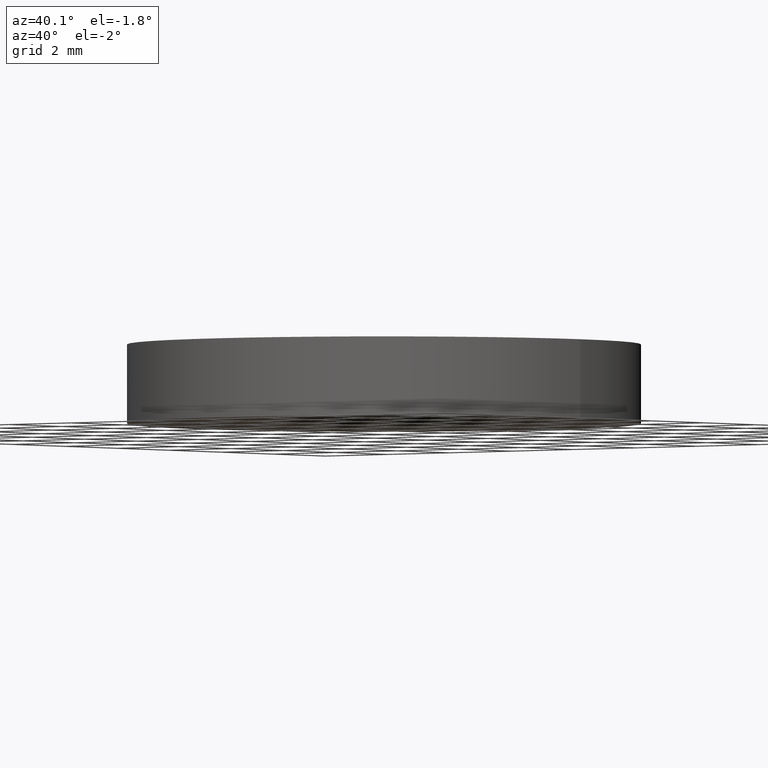
[diagram: clean part render]
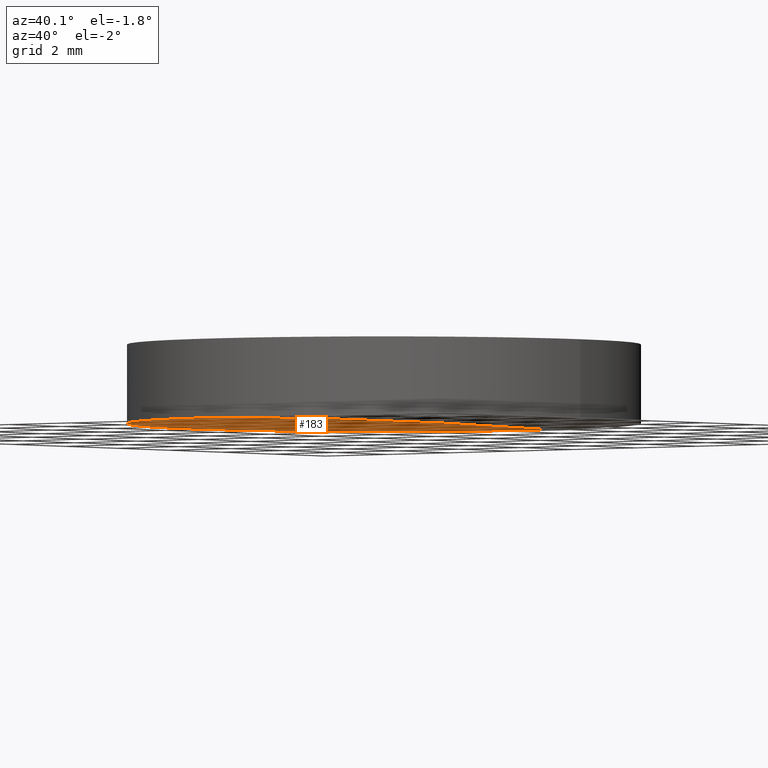
[diagram: same view with one face highlighted and labeled with its STEP entity id]
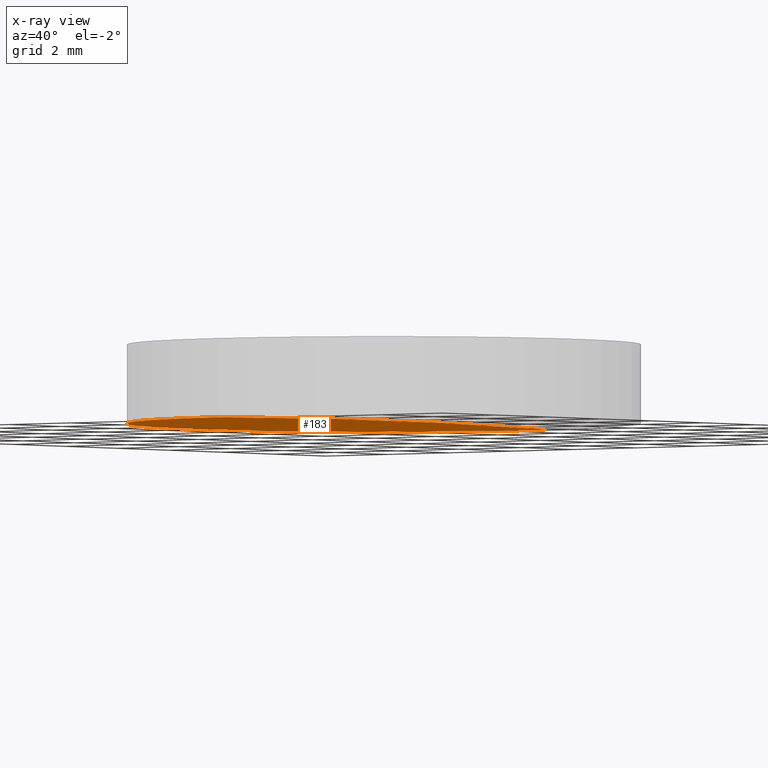
[diagram: x-ray of the same camera — body ghosted, the highlighted face saturated]
A machine part, auxiliary view. The second image highlights one B-rep face of the part: STEP entity #183.
The next image is the same camera in x-ray: the body ghosted, the highlighted face saturated — about 0% of this face is hidden behind the body in this view.
In plain terms, the highlighted face is a freeform B-spline surface patch.
Its self-contained STEP definition (entity closure, byte-faithful):
#3 = CARTESIAN_POINT ( 'NONE',  ( -2.128980519806766400, -6.426184536089220200, -0.07951900455132468500 ) ) ;
#24 = CARTESIAN_POINT ( 'NONE',  ( -2.129850009775576100, 2.142498861219035400, 0.02651174670439010800 ) ) ;
#50 = EDGE_CURVE ( 'NONE', #103, #197, #87, .T. ) ;
#56 = CARTESIAN_POINT ( 'NONE',  ( -9.235371109198769400E-014, 6.349999999999808700, -0.07764445256259233700 ) ) ;
#59 = AXIS2_PLACEMENT_3D ( 'NONE', #198, #133, #218 ) ;
#62 = DIRECTION ( 'NONE',  ( 0.0000000000000000000, 0.0000000000000000000, 1.000000000000000000 ) ) ;
#65 = AXIS2_PLACEMENT_3D ( 'NONE', #203, #62, #185 ) ;
#70 = CARTESIAN_POINT ( 'NONE',  ( -4.259538903191835100, -2.142498861219058500, 0.0003147736007353074900 ) ) ;
#77 = EDGE_LOOP ( 'NONE', ( #175, #274, #165 ) ) ;
#82 = CIRCLE ( 'NONE', #59, 259.6999999999999900 ) ;
#87 = CIRCLE ( 'NONE', #208, 6.349999999999999600 ) ;
#93 = CARTESIAN_POINT ( 'NONE',  ( -6.388744471906481900, -2.142498861219058500, -0.05207520917165357100 ) ) ;
#94 = VERTEX_POINT ( 'NONE', #158 ) ;
#95 = CARTESIAN_POINT ( 'NONE',  ( -6.386136330860806800, -6.426184536089219400, -0.1580738780884716200 ) ) ;
#99 = CIRCLE ( 'NONE', #65, 6.349999999999999600 ) ;
#103 = VERTEX_POINT ( 'NONE', #56 ) ;
#106 =( BOUNDED_SURFACE ( )  B_SPLINE_SURFACE ( 3, 3, ( 
 ( #150, #145, #146, #210 ),
 ( #123, #255, #24, #282 ),
 ( #93, #70, #280, #207 ),
 ( #95, #212, #3, #258 ) ),
 .UNSPECIFIED., .F., .F., .T. ) 
 B_SPLINE_SURFACE_WITH_KNOTS ( ( 4, 4 ),
 ( 4, 4 ),
 ( 0.0000000000000000000, 1.000000000000000000 ),
 ( 0.0000000000000000000, 1.000000000000000000 ),
 .UNSPECIFIED. ) 
 GEOMETRIC_REPRESENTATION_ITEM ( )  RATIONAL_B_SPLINE_SURFACE ( (
 ( 1.000000000000000000, 0.9999495687932881100, 0.9999495687932881100, 1.000000000000000000),
 ( 0.9997958695814366200, 0.9997454486692680700, 0.9997454486692680700, 0.9997958695814366200),
 ( 0.9997958695814366200, 0.9997454486692680700, 0.9997454486692680700, 0.9997958695814366200),
 ( 1.000000000000000000, 0.9999495687932881100, 0.9999495687932881100, 1.000000000000000000) ) ) 
 REPRESENTATION_ITEM ( '' )  SURFACE ( )  );
#123 = CARTESIAN_POINT ( 'NONE',  ( -6.388744471906481000, 2.142498861219036800, -0.05207520917165399400 ) ) ;
#125 = FACE_OUTER_BOUND ( 'NONE', #77, .T. ) ;
#132 = EDGE_CURVE ( 'NONE', #197, #94, #99, .T. ) ;
#133 = DIRECTION ( 'NONE',  ( 1.000000000000000000, -2.237857218932010100E-016, 3.277692368538209700E-017 ) ) ;
#134 = CARTESIAN_POINT ( 'NONE',  ( 2.498001805406600200E-016, 1.221245327087670000E-015, -0.07764445256259830400 ) ) ;
#145 = CARTESIAN_POINT ( 'NONE',  ( -4.257799989028350200, 6.426184536089197200, -0.1057052830026699600 ) ) ;
#146 = CARTESIAN_POINT ( 'NONE',  ( -2.128980519806762800, 6.426184536089197200, -0.07951900455132469800 ) ) ;
#150 = CARTESIAN_POINT ( 'NONE',  ( -6.386136330860803200, 6.426184536089198000, -0.1580738780884716200 ) ) ;
#158 = CARTESIAN_POINT ( 'NONE',  ( -9.519578976003126600E-014, -6.349999999999807800, -0.07764445256259233700 ) ) ;
#165 = ORIENTED_EDGE ( 'NONE', *, *, #132, .F. ) ;
#175 = ORIENTED_EDGE ( 'NONE', *, *, #50, .F. ) ;
#183 = ADVANCED_FACE ( 'NONE', ( #125 ), #106, .F. ) ;
#185 = DIRECTION ( 'NONE',  ( 1.000000000000000000, 0.0000000000000000000, 0.0000000000000000000 ) ) ;
#191 = CARTESIAN_POINT ( 'NONE',  ( -6.349999999999999600, 1.998896044546239400E-015, -0.07764445256259830400 ) ) ;
#197 = VERTEX_POINT ( 'NONE', #191 ) ;
#198 = CARTESIAN_POINT ( 'NONE',  ( -8.526512829121199700E-014, 0.0000000000000000000, -259.6999999999999900 ) ) ;
#203 = CARTESIAN_POINT ( 'NONE',  ( 2.498001805406600200E-016, 1.221245327087670000E-015, -0.07764445256259830400 ) ) ;
#207 = CARTESIAN_POINT ( 'NONE',  ( -1.569924745759010700E-013, -2.142498861219059900, 0.02651174670439112800 ) ) ;
#208 = AXIS2_PLACEMENT_3D ( 'NONE', #134, #247, #291 ) ;
#210 = CARTESIAN_POINT ( 'NONE',  ( -1.552577510999242300E-013, 6.426184536089196300, -0.07951900455132412900 ) ) ;
#212 = CARTESIAN_POINT ( 'NONE',  ( -4.257799989028353800, -6.426184536089220200, -0.1057052830026699400 ) ) ;
#218 = DIRECTION ( 'NONE',  ( 2.237857218932010100E-016, 1.000000000000000000, 0.0000000000000000000 ) ) ;
#247 = DIRECTION ( 'NONE',  ( 0.0000000000000000000, 0.0000000000000000000, 1.000000000000000000 ) ) ;
#255 = CARTESIAN_POINT ( 'NONE',  ( -4.259538903191835100, 2.142498861219035900, 0.0003147736007348873600 ) ) ;
#258 = CARTESIAN_POINT ( 'NONE',  ( -1.587271980518778500E-013, -6.426184536089221100, -0.07951900455132410200 ) ) ;
#274 = ORIENTED_EDGE ( 'NONE', *, *, #277, .T. ) ;
#277 = EDGE_CURVE ( 'NONE', #103, #94, #82, .T. ) ;
#280 = CARTESIAN_POINT ( 'NONE',  ( -2.129850009775577000, -2.142498861219059000, 0.02651174670439054500 ) ) ;
#282 = CARTESIAN_POINT ( 'NONE',  ( -1.561251128379126400E-013, 2.142498861219035400, 0.02651174670439069400 ) ) ;
#291 = DIRECTION ( 'NONE',  ( 1.000000000000000000, 0.0000000000000000000, 0.0000000000000000000 ) ) ;